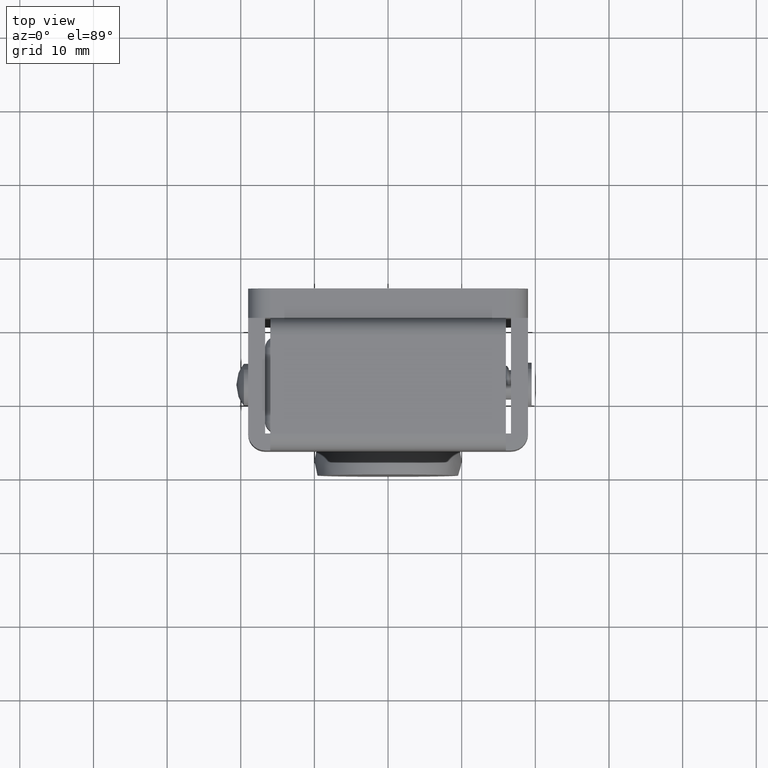
[diagram: clean part render]
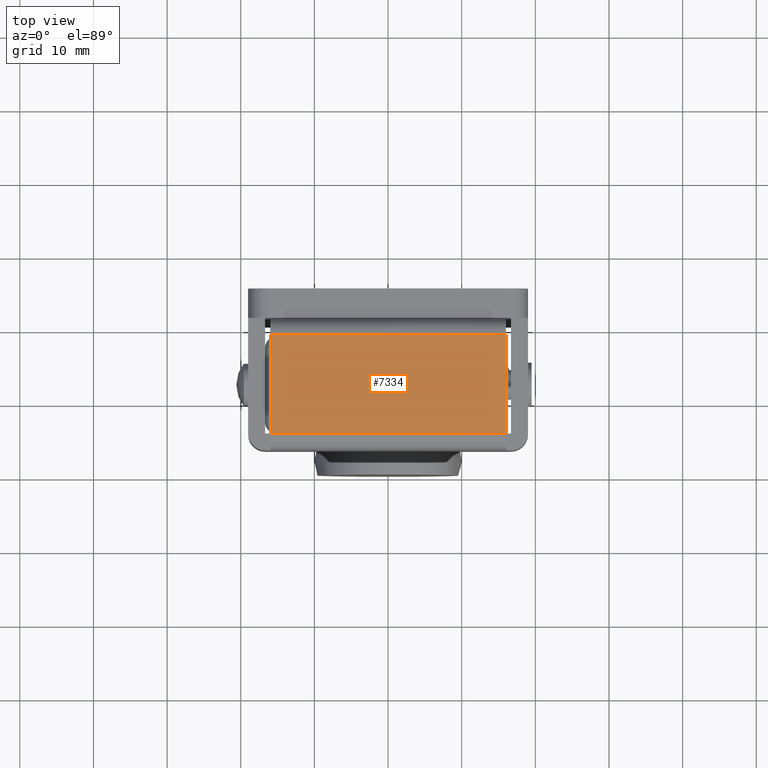
[diagram: same view with one face highlighted and labeled with its STEP entity id]
A machine part, top view. The second image highlights one B-rep face of the part: STEP entity #7334.
In plain terms, the highlighted face is a freeform B-spline surface patch.
Its self-contained STEP definition (entity closure, byte-faithful):
#6767=CARTESIAN_POINT('',(16.0,-18.199999999999999,54.500000000000000));
#6768=VERTEX_POINT('',#6767);
#6781=CARTESIAN_POINT('',(-16.0,-18.199999999999999,54.500000000000000));
#6782=VERTEX_POINT('',#6781);
#6783=CARTESIAN_POINT('',(16.0,-18.199999999999999,54.500000000000000));
#6784=CARTESIAN_POINT('',(-16.0,-18.199999999999999,54.500000000000000));
#6785=QUASI_UNIFORM_CURVE('',1,(#6783,#6784),.UNSPECIFIED.,.F.,.U.);
#6786=EDGE_CURVE('',#6768,#6782,#6785,.T.);
#6824=CARTESIAN_POINT('',(16.0,-4.800000000000000,54.500000000000000));
#6825=VERTEX_POINT('',#6824);
#6847=CARTESIAN_POINT('',(-16.0,-4.800000000000000,54.500000000000000));
#6848=VERTEX_POINT('',#6847);
#6862=CARTESIAN_POINT('',(-16.0,-4.800000000000000,54.500000000000000));
#6863=CARTESIAN_POINT('',(16.0,-4.800000000000000,54.500000000000000));
#6864=QUASI_UNIFORM_CURVE('',1,(#6862,#6863),.UNSPECIFIED.,.F.,.U.);
#6865=EDGE_CURVE('',#6848,#6825,#6864,.T.);
#7304=CARTESIAN_POINT('',(-16.0,-18.199999999999999,54.500000000000000));
#7305=CARTESIAN_POINT('',(-16.0,-4.800000000000000,54.500000000000000));
#7306=QUASI_UNIFORM_CURVE('',1,(#7304,#7305),.UNSPECIFIED.,.F.,.U.);
#7307=EDGE_CURVE('',#6782,#6848,#7306,.T.);
#7319=CARTESIAN_POINT('',(-17.598399937977788,-4.130670151761414,54.500000000000000));
#7320=CARTESIAN_POINT('',(-17.598399937977788,-18.869330327459931,54.500000000000000));
#7321=CARTESIAN_POINT('',(17.598400796284679,-4.130670151761414,54.500000000000000));
#7322=CARTESIAN_POINT('',(17.598400796284679,-18.869330327459931,54.500000000000000));
#7323=B_SPLINE_SURFACE_WITH_KNOTS('',1,1,((#7319,#7321),(#7320,#7322)),.UNSPECIFIED.,.F.,.F.,.U.,(2,2),(2,2),(0.0,14.738660175698509),(0.0,35.196800734262467),.UNSPECIFIED.);
#7324=CARTESIAN_POINT('',(16.0,-18.199999999999999,54.500000000000000));
#7325=CARTESIAN_POINT('',(16.0,-4.800000000000000,54.500000000000000));
#7326=QUASI_UNIFORM_CURVE('',1,(#7324,#7325),.UNSPECIFIED.,.F.,.U.);
#7327=EDGE_CURVE('',#6768,#6825,#7326,.T.);
#7328=ORIENTED_EDGE('',*,*,#7327,.T.);
#7329=ORIENTED_EDGE('',*,*,#6865,.F.);
#7330=ORIENTED_EDGE('',*,*,#7307,.F.);
#7331=ORIENTED_EDGE('',*,*,#6786,.F.);
#7332=EDGE_LOOP('',(#7328,#7329,#7330,#7331));
#7333=FACE_OUTER_BOUND('',#7332,.T.);
#7334=ADVANCED_FACE('',(#7333),#7323,.T.);